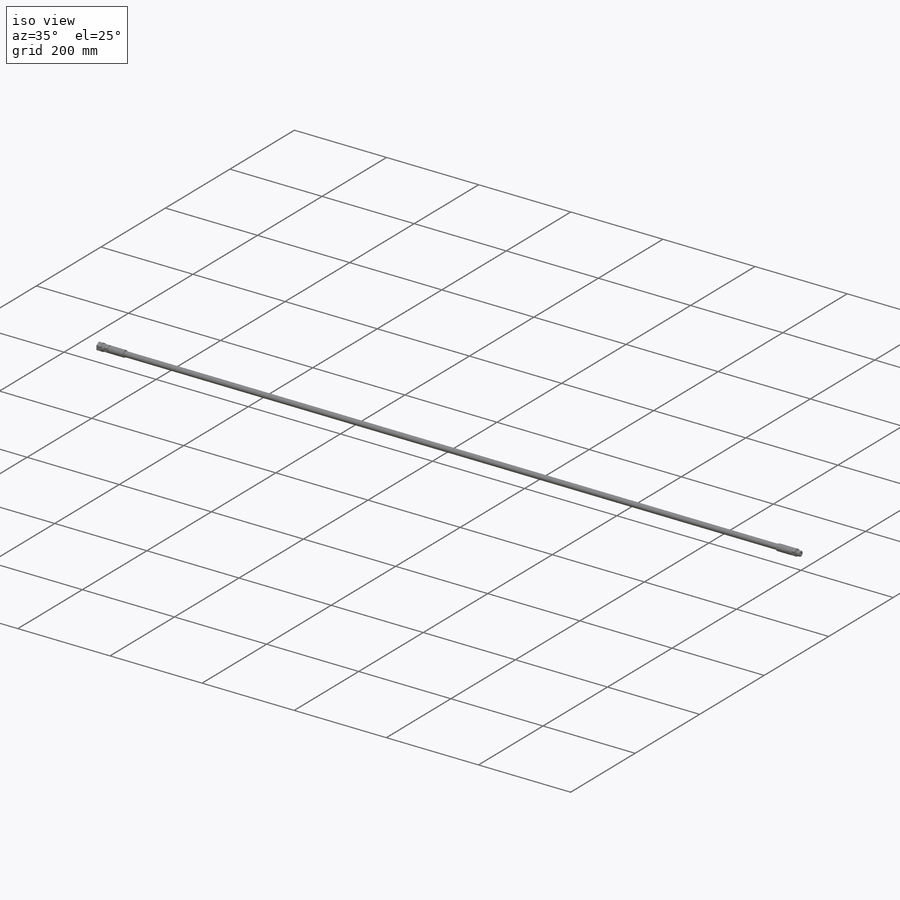
[diagram: iso view]
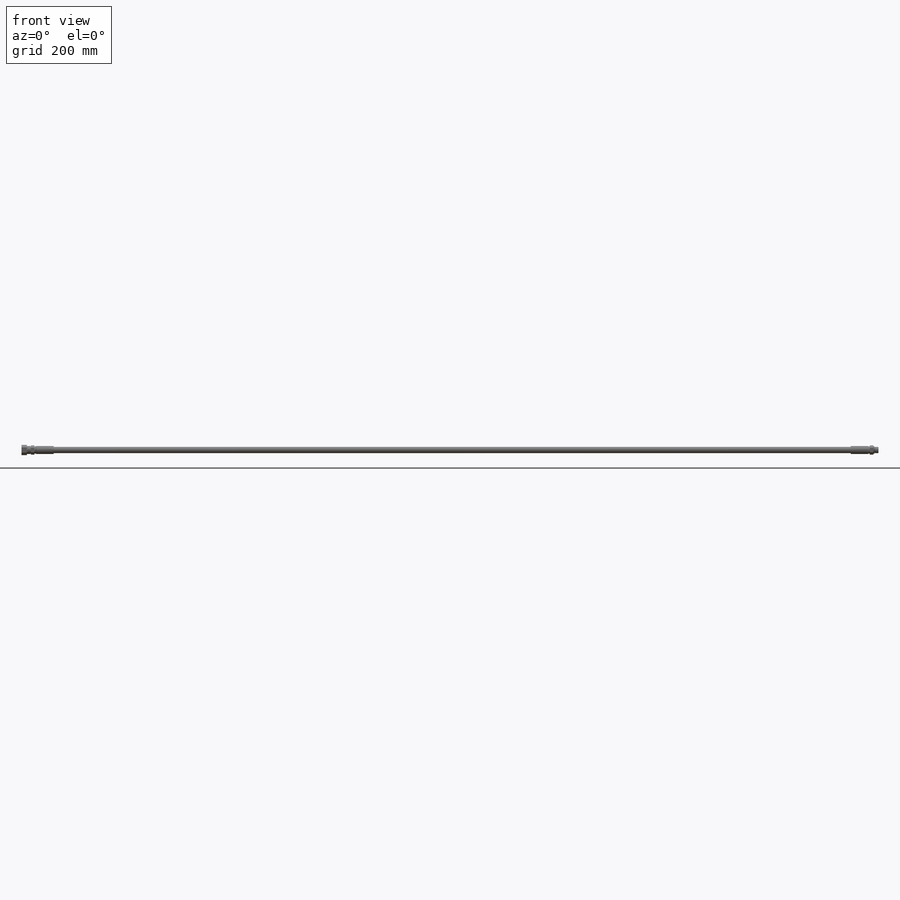
[diagram: front view]
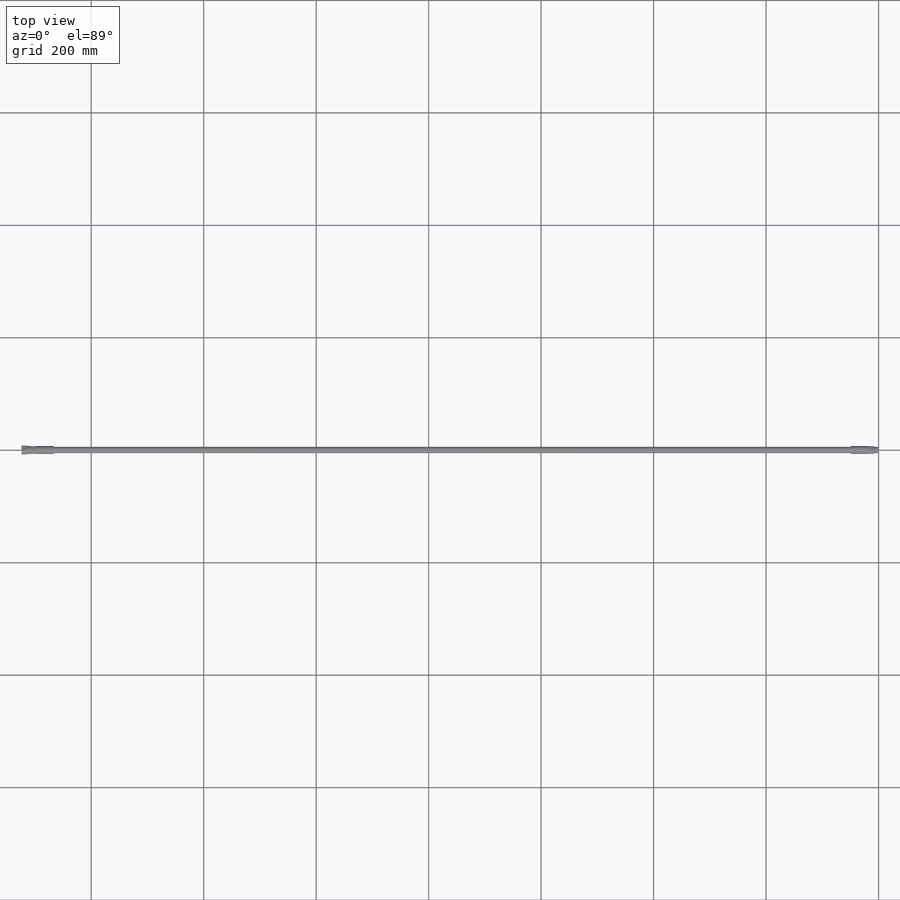
[diagram: top view]
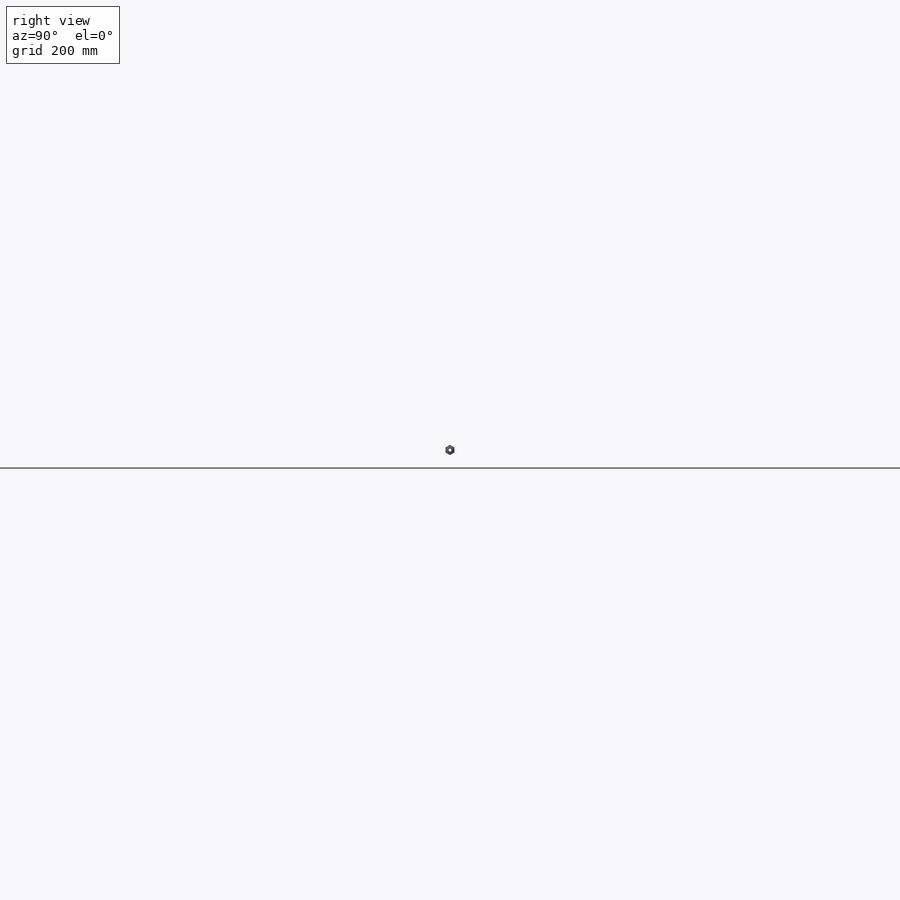
[diagram: right view]
SOLIDWORKS PART (.sldprt)
format: sldprt  version: not decoded by parser v0  size: 228,864 bytes
history: native  units: mm
features: sketch x5, revolve x2, cut_extrude x2, material x1, chamfer x1, cut_revolve x1 (+13 scaffold rows collapsed)
feature tree (25):
  scaffold x13  (default folders/planes/origin — collapsed)
  material  "Alloy Steel"
  sketch  "Sketch1"  dims[c1.D1=4.826mm c1.D2=11.0744mm c1.D3=9.144mm c1.D4=1.905mm c1.D5=~1.417467mm c2.D5=45.0deg c2.D6=9.2456mm c2.D7=11.176mm c2.D8=14.224mm c2.D9=2.54mm c2.D10=12.7mm c2.D11=~1.077631mm c3.D11=45.0deg c3.D12=6.35mm c3.D13=38.1mm c3.D14=30.48mm c3.D15=~8.903282mm c4.D15=45.0deg c4.D14=30.48mm c4.D16=30.861mm c4.D17=9.525mm c4.D18=38.1mm c4.D19=6.35mm c4.D20=1524.0mm c4.D21=0.762mm c4.D22=6.35mm c4.D23=1417.574mm]
  revolve  "Revolve1"  Angle=360deg
  sketch  "Sketch2"  dims[D1=14.224mm]
  cut_extrude  "Cut-Extrude1"  [1 undecoded]
  sketch  "Sketch3"  dims[D1=15.875mm]
  cut_extrude  "Cut-Extrude2"  [1 undecoded]
  chamfer  "Chamfer1"  Distance=0.6858mm Angle=45deg
  sketch  "Sketch4"  dims[D2=2.032mm D1=11.176mm]
  revolve  "Revolve5"  Angle=360deg
  sketch  "Sketch5"  dims[c1.D1=~2.099076mm c2.D1=45.0deg c2.D2=1.7526mm c2.D3=~9.92124mm c2.D4=~4.47665mm c3.D4=59.0deg c3.D5=12.7mm c3.D6=8.9533mm]
  cut_revolve  "Cut-Revolve2"  Angle=360deg
decode coverage: 9 of 11 modeling features carry decoded parameters
note: ~ marks probable driven/reference dimensions
note: 2 parameter values undecoded
note: suppression state not decoded; provenance and decode notes live in map.json
